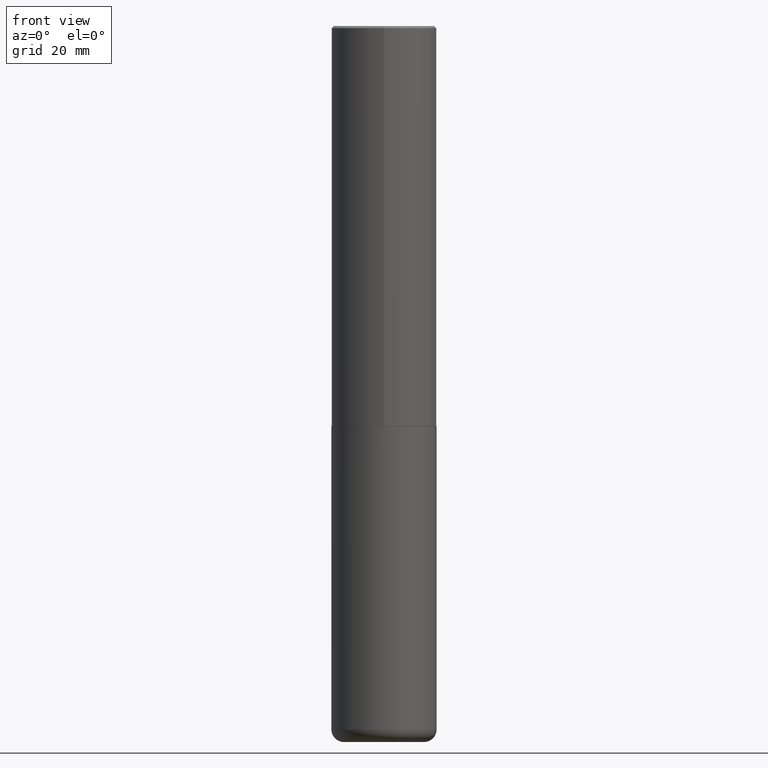
[diagram: clean part render]
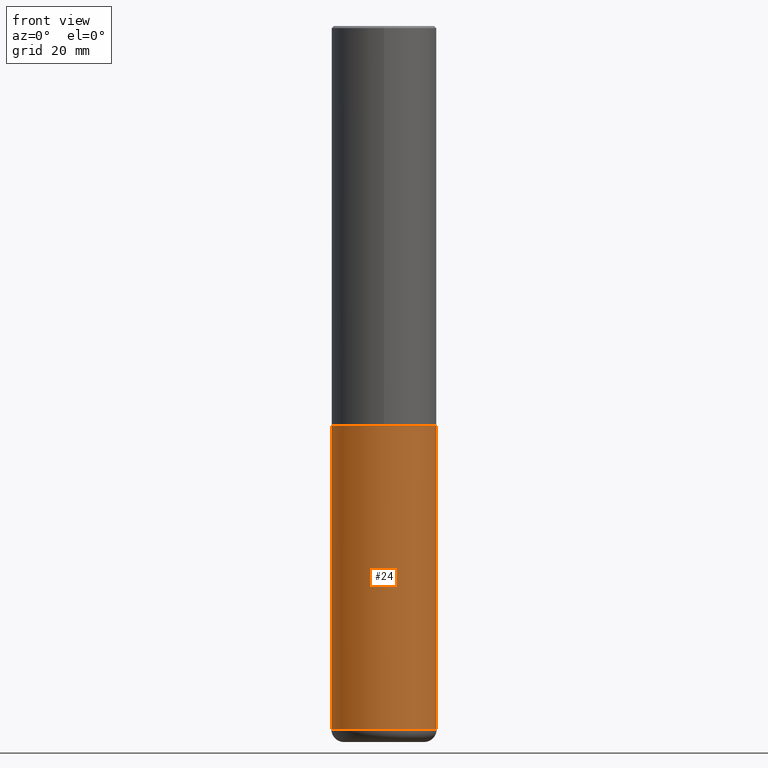
[diagram: same view with one face highlighted and labeled with its STEP entity id]
A machine part, front view. The second image highlights one B-rep face of the part: STEP entity #24.
In plain terms, the highlighted cylindrical surface (partial cylindrical patch) has radius 12.5006 mm, axis along (-0, 0, 1).
Its self-contained STEP definition (entity closure, byte-faithful):
#7 = DIRECTION ( 'NONE',  ( -2.445468806185136597E-29, 3.491481338843145583E-15, 1.000000000000000000 ) ) ;
#12 = VERTEX_POINT ( 'NONE', #20 ) ;
#15 = EDGE_CURVE ( 'NONE', #41, #369, #289, .T. ) ;
#20 = CARTESIAN_POINT ( 'NONE',  ( -0.4921499999999999764, -1.945885543258258157E-14, -6.574799999999999756 ) ) ;
#23 = CYLINDRICAL_SURFACE ( 'NONE', #234, 0.4921499999999999764 ) ;
#24 = ADVANCED_FACE ( 'NONE', ( #176 ), #23, .T. ) ;
#25 = CARTESIAN_POINT ( 'NONE',  ( -0.4921499999999999764, -1.451020435697325173E-14, -3.740100000000000424 ) ) ;
#35 = AXIS2_PLACEMENT_3D ( 'NONE', #228, #7, #361 ) ;
#41 = VERTEX_POINT ( 'NONE', #25 ) ;
#59 = CARTESIAN_POINT ( 'NONE',  ( 0.4921499999999999764, -3.436665081823295777E-15, 2.399810400207969603E-29 ) ) ;
#82 = CARTESIAN_POINT ( 'NONE',  ( -0.4921499999999999764, 3.496936074043332897E-15, -2.420853904668951509E-29 ) ) ;
#87 = EDGE_CURVE ( 'NONE', #167, #369, #380, .T. ) ;
#109 = ORIENTED_EDGE ( 'NONE', *, *, #15, .F. ) ;
#113 = VECTOR ( 'NONE', #398, 39.37007874015748143 ) ;
#118 = DIRECTION ( 'NONE',  ( 1.000000000000000000, -6.982962677686265922E-15, 4.876176775795935793E-29 ) ) ;
#137 = DIRECTION ( 'NONE',  ( 1.000000000000000000, -6.982962677686265922E-15, 0.000000000000000000 ) ) ;
#143 = CARTESIAN_POINT ( 'NONE',  ( 9.146297882013029477E-29, -1.305848935540725085E-14, -3.740100000000000424 ) ) ;
#146 = CARTESIAN_POINT ( 'NONE',  ( 0.000000000000000000, 0.000000000000000000, 0.000000000000000000 ) ) ;
#150 = AXIS2_PLACEMENT_3D ( 'NONE', #143, #377, #137 ) ;
#167 = VERTEX_POINT ( 'NONE', #222 ) ;
#172 = ORIENTED_EDGE ( 'NONE', *, *, #306, .F. ) ;
#173 = LINE ( 'NONE', #82, #113 ) ;
#176 = FACE_OUTER_BOUND ( 'NONE', #269, .T. ) ;
#215 = CIRCLE ( 'NONE', #35, 0.4921500000000000319 ) ;
#222 = CARTESIAN_POINT ( 'NONE',  ( 0.4921499999999999764, -2.639245658844920945E-14, -6.574799999999999756 ) ) ;
#228 = CARTESIAN_POINT ( 'NONE',  ( 1.607846830690603466E-28, -2.295579150662591525E-14, -6.574799999999999756 ) ) ;
#234 = AXIS2_PLACEMENT_3D ( 'NONE', #146, #284, #118 ) ;
#248 = EDGE_CURVE ( 'NONE', #12, #167, #215, .T. ) ;
#267 = ORIENTED_EDGE ( 'NONE', *, *, #248, .T. ) ;
#269 = EDGE_LOOP ( 'NONE', ( #172, #267, #363, #109 ) ) ;
#284 = DIRECTION ( 'NONE',  ( -2.445468806185136597E-29, 3.491481338843145583E-15, 1.000000000000000000 ) ) ;
#289 = CIRCLE ( 'NONE', #150, 0.4921499999999999764 ) ;
#293 = DIRECTION ( 'NONE',  ( -2.445468806185136877E-29, 3.491481338843145188E-15, 1.000000000000000000 ) ) ;
#306 = EDGE_CURVE ( 'NONE', #12, #41, #173, .T. ) ;
#327 = VECTOR ( 'NONE', #293, 39.37007874015748143 ) ;
#338 = CARTESIAN_POINT ( 'NONE',  ( 0.4921499999999999764, -1.649515443723054663E-14, -3.740100000000000424 ) ) ;
#361 = DIRECTION ( 'NONE',  ( 1.000000000000000000, -6.982962677686265133E-15, 0.000000000000000000 ) ) ;
#363 = ORIENTED_EDGE ( 'NONE', *, *, #87, .T. ) ;
#369 = VERTEX_POINT ( 'NONE', #338 ) ;
#377 = DIRECTION ( 'NONE',  ( -2.445468806185136597E-29, 3.491481338843145583E-15, 1.000000000000000000 ) ) ;
#380 = LINE ( 'NONE', #59, #327 ) ;
#398 = DIRECTION ( 'NONE',  ( -2.445468806185136877E-29, 3.491481338843145188E-15, 1.000000000000000000 ) ) ;